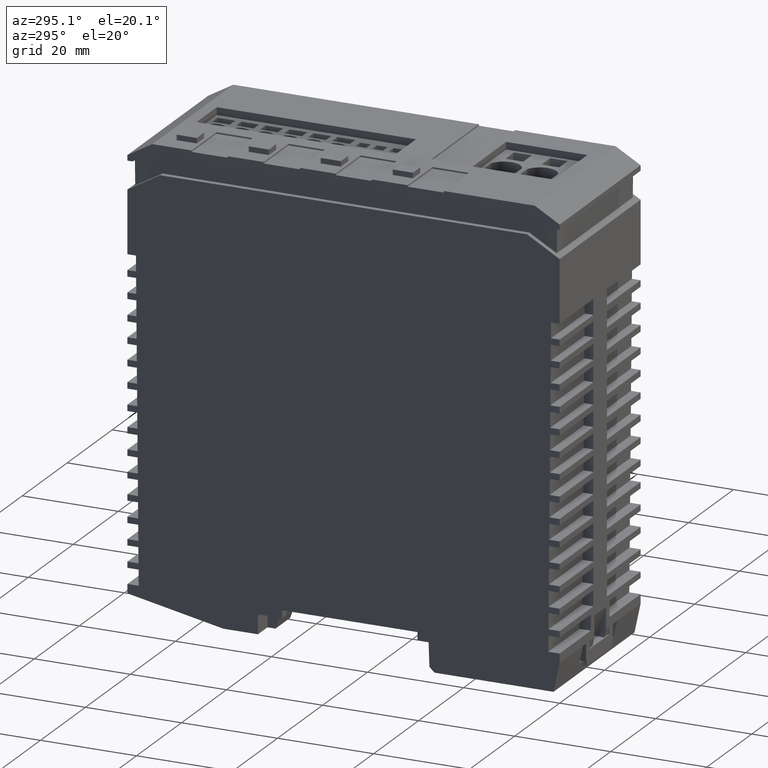
[diagram: clean part render]
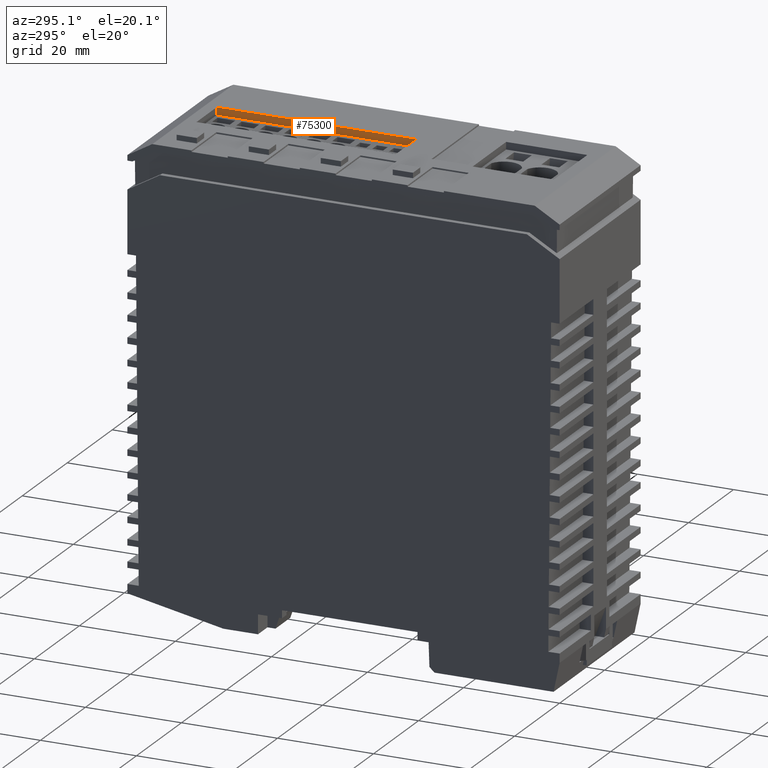
[diagram: same view with one face highlighted and labeled with its STEP entity id]
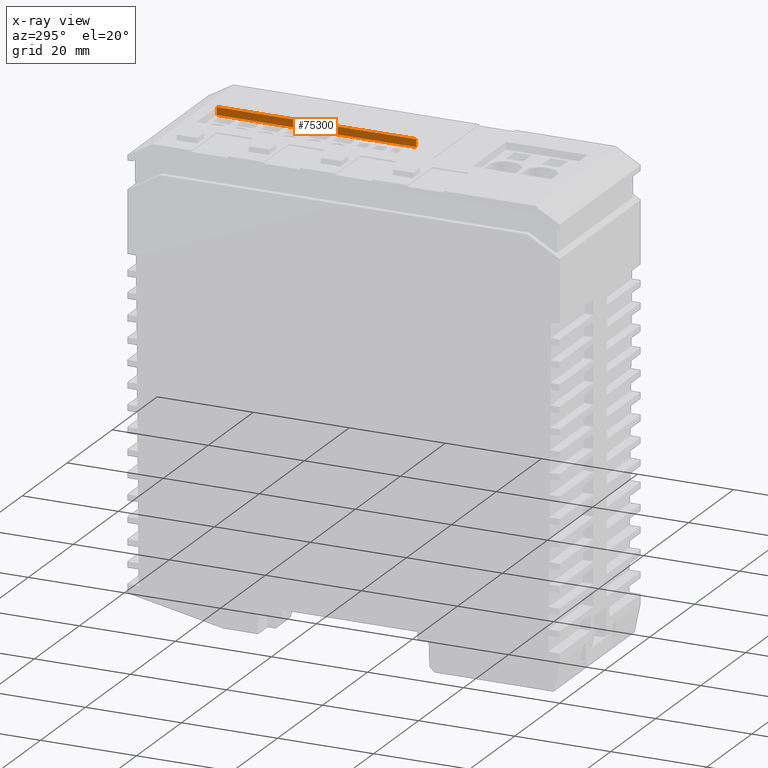
[diagram: x-ray of the same camera — body ghosted, the highlighted face saturated]
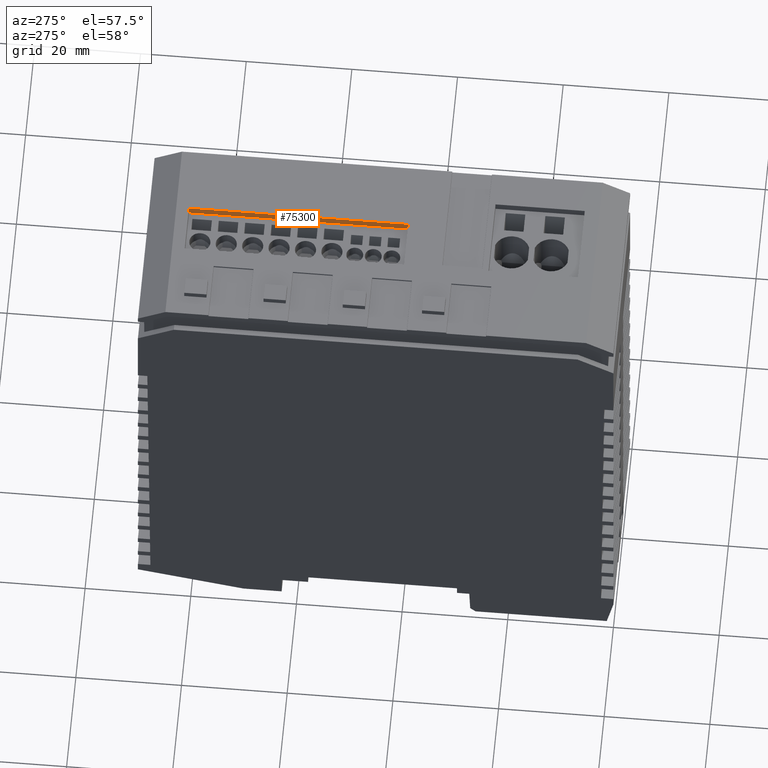
[diagram: same view with one face highlighted and labeled with its STEP entity id]
A machine part, auxiliary view. The second image highlights one B-rep face of the part: STEP entity #75300.
The next image is the same camera in x-ray: the body ghosted, the highlighted face saturated — about 0% of this face is hidden behind the body in this view.
A second angle (auxiliary view) of the same face is appended — the face is thin or edge-on in the first view.
In plain terms, the highlighted planar face has unit normal (1, 0, -0).
Its self-contained STEP definition (entity closure, byte-faithful):
#70890=CARTESIAN_POINT('',(77.0000005266353,24.6999996755416,
-11.2995806920557));
#70900=DIRECTION('',(-6.45317145048616E-16,1.,-1.07700885325316E-14));
#70910=VECTOR('',#70900,1.);
#70920=LINE('',#70890,#70910);
#70930=CARTESIAN_POINT('',(77.0000005266353,20.5999999999999,
-11.2995806920557));
#70940=VERTEX_POINT('',#70930);
#70950=CARTESIAN_POINT('',(77.0000005266353,62.0999999999999,
-11.2995806920561));
#70960=VERTEX_POINT('',#70950);
#70970=EDGE_CURVE('',#70940,#70960,#70920,.T.);
#75000=CARTESIAN_POINT('',(77.3000005266353,61.0999999999999,
-11.2995806923872));
#75010=DIRECTION('',(1.10352378677163E-9,1.07700885332437E-14,1.));
#75020=DIRECTION('',(6.45317145087361E-16,-1.,1.07700885325316E-14));
#75030=AXIS2_PLACEMENT_3D('',#75000,#75010,#75020);
#75040=PLANE('',#75030);
#75050=CARTESIAN_POINT('',(37.9424402554601,20.5999999999997,
-11.2995806489547));
#75060=DIRECTION('',(1.,4.6043901565237E-15,-1.10352378677163E-9));
#75070=VECTOR('',#75060,1.);
#75080=LINE('',#75050,#75070);
#75090=CARTESIAN_POINT('',(78.5706902286017,20.5999999999999,
-11.299580693789));
#75100=VERTEX_POINT('',#75090);
#75110=EDGE_CURVE('',#70940,#75100,#75080,.T.);
#75120=ORIENTED_EDGE('',*,*,#75110,.F.);
#75130=CARTESIAN_POINT('',(78.5706902286018,24.6999996755416,
-11.299580693789));
#75140=DIRECTION('',(4.60439016844739E-15,-1.,1.07700885281627E-14));
#75150=VECTOR('',#75140,1.);
#75160=LINE('',#75130,#75150);
#75170=CARTESIAN_POINT('',(78.5706902286016,62.0999999999999,
-11.2995806937894));
#75180=VERTEX_POINT('',#75170);
#75190=EDGE_CURVE('',#75180,#75100,#75160,.T.);
#75200=ORIENTED_EDGE('',*,*,#75190,.T.);
#75210=CARTESIAN_POINT('',(124.800000377619,62.0999999999999,
-11.2995807448046));
#75220=DIRECTION('',(1.,6.45317136932704E-16,-1.10352378677163E-9));
#75230=VECTOR('',#75220,1.);
#75240=LINE('',#75210,#75230);
#75250=EDGE_CURVE('',#70960,#75180,#75240,.T.);
#75260=ORIENTED_EDGE('',*,*,#75250,.T.);
#75270=ORIENTED_EDGE('',*,*,#70970,.T.);
#75280=EDGE_LOOP('',(#75270,#75260,#75200,#75120));
#75290=FACE_OUTER_BOUND('',#75280,.T.);
#75300=ADVANCED_FACE('',(#75290),#75040,.F.);